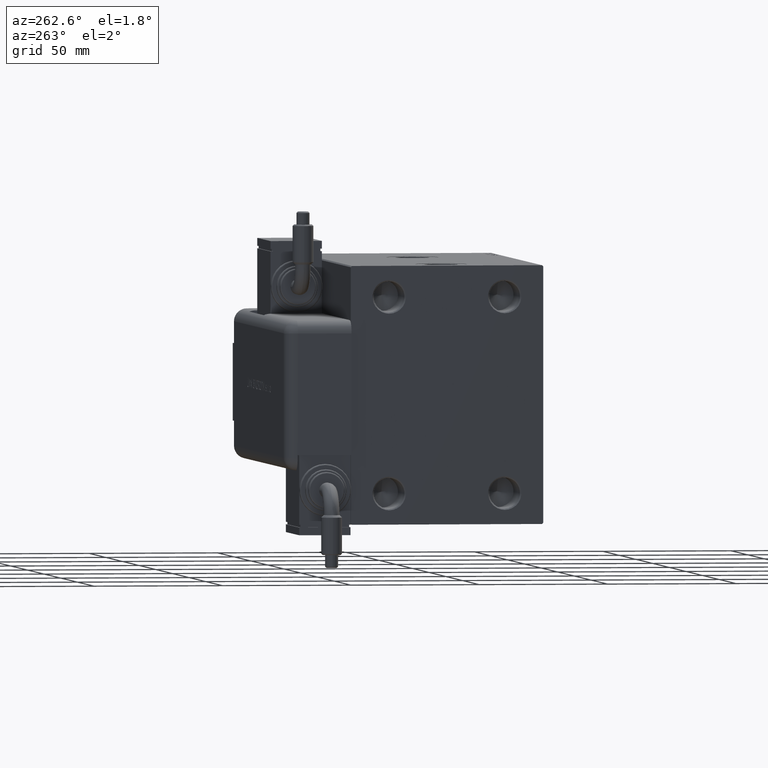
[diagram: clean part render]
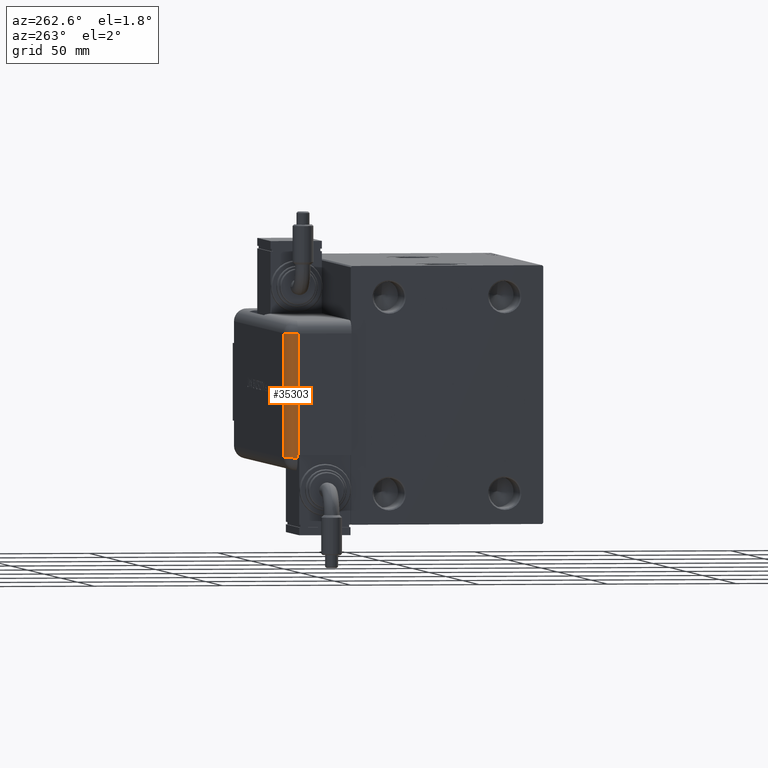
[diagram: same view with one face highlighted and labeled with its STEP entity id]
A machine part, auxiliary view. The second image highlights one B-rep face of the part: STEP entity #35303.
In plain terms, the highlighted cylindrical surface (edge-blend (fillet) strip) has radius 5 mm, axis along (0, 0, -1).
Its self-contained STEP definition (entity closure, byte-faithful):
#760 = ORIENTED_EDGE ( 'NONE', *, *, #49754, .F. ) ;
#1373 = VERTEX_POINT ( 'NONE', #47090 ) ;
#3395 = ORIENTED_EDGE ( 'NONE', *, *, #59337, .F. ) ;
#3765 = ORIENTED_EDGE ( 'NONE', *, *, #51283, .F. ) ;
#4147 = DIRECTION ( 'NONE',  ( 1.000000000000000000, 0.000000000000000000, 0.000000000000000000 ) ) ;
#4599 = DIRECTION ( 'NONE',  ( 1.000000000000000000, -0.000000000000000000, 0.000000000000000000 ) ) ;
#4879 = AXIS2_PLACEMENT_3D ( 'NONE', #33644, #4147, #47951 ) ;
#7923 = EDGE_LOOP ( 'NONE', ( #7996, #40153, #3395, #41831, #760, #3765 ) ) ;
#7996 = ORIENTED_EDGE ( 'NONE', *, *, #11598, .F. ) ;
#8277 = AXIS2_PLACEMENT_3D ( 'NONE', #48094, #4599, #23951 ) ;
#8920 = FACE_OUTER_BOUND ( 'NONE', #7923, .T. ) ;
#9610 = CARTESIAN_POINT ( 'NONE',  ( 23.00000000000000000, 20.79999999999998295, 1.734723475976807094E-15 ) ) ;
#11253 = CARTESIAN_POINT ( 'NONE',  ( 23.99999999999999289, 25.79999999999998295, 5.000000000000004441 ) ) ;
#11598 = EDGE_CURVE ( 'NONE', #57452, #1373, #55269, .T. ) ;
#19702 = AXIS2_PLACEMENT_3D ( 'NONE', #21998, #59811, #27080 ) ;
#21998 = CARTESIAN_POINT ( 'NONE',  ( 23.00000000000000000, 20.79999999999998295, 5.000000000000004441 ) ) ;
#23503 = DIRECTION ( 'NONE',  ( 0.000000000000000000, 0.000000000000000000, -1.000000000000000000 ) ) ;
#23951 = DIRECTION ( 'NONE',  ( 0.000000000000000000, 0.000000000000000000, -1.000000000000000000 ) ) ;
#26525 = CIRCLE ( 'NONE', #8277, 5.000000000000000000 ) ;
#27080 = DIRECTION ( 'NONE',  ( 0.000000000000000000, 1.526556658859590243E-14, -1.000000000000000000 ) ) ;
#29214 = CARTESIAN_POINT ( 'NONE',  ( -23.99999999999999645, 20.79999999999998295, 5.000000000000002665 ) ) ;
#29536 = VERTEX_POINT ( 'NONE', #31392 ) ;
#30514 = CARTESIAN_POINT ( 'NONE',  ( 23.00000000000000000, 21.00000000000000000, 0.004001601281286050471 ) ) ;
#31392 = CARTESIAN_POINT ( 'NONE',  ( -23.99999999999999645, 20.79999999999998295, 0.000000000000000000 ) ) ;
#31743 = DIRECTION ( 'NONE',  ( 1.000000000000000000, 0.000000000000000000, 0.000000000000000000 ) ) ;
#32448 = DIRECTION ( 'NONE',  ( 1.000000000000000000, -0.000000000000000000, -0.000000000000000000 ) ) ;
#33644 = CARTESIAN_POINT ( 'NONE',  ( -28.99999999999999645, 20.79999999999998295, 5.000000000000004441 ) ) ;
#33731 = VECTOR ( 'NONE', #31743, 1000.000000000000000 ) ;
#33929 = CIRCLE ( 'NONE', #19702, 5.000000000000000000 ) ;
#35303 = ADVANCED_FACE ( 'NONE', ( #8920 ), #39026, .T. ) ;
#36488 = CIRCLE ( 'NONE', #41561, 5.000000000000000000 ) ;
#36515 = CARTESIAN_POINT ( 'NONE',  ( -28.99999999999999645, 21.00000000000000000, 0.004001601281286050471 ) ) ;
#38302 = VERTEX_POINT ( 'NONE', #11253 ) ;
#38957 = VECTOR ( 'NONE', #32448, 1000.000000000000000 ) ;
#39026 = CYLINDRICAL_SURFACE ( 'NONE', #4879, 5.000000000000000000 ) ;
#39396 = LINE ( 'NONE', #53714, #46734 ) ;
#40153 = ORIENTED_EDGE ( 'NONE', *, *, #59163, .T. ) ;
#41561 = AXIS2_PLACEMENT_3D ( 'NONE', #29214, #43810, #23503 ) ;
#41831 = ORIENTED_EDGE ( 'NONE', *, *, #42967, .T. ) ;
#42120 = CARTESIAN_POINT ( 'NONE',  ( -23.99999999999999645, 25.79999999999998295, 5.000000000000004441 ) ) ;
#42967 = EDGE_CURVE ( 'NONE', #29536, #57915, #36488, .T. ) ;
#43810 = DIRECTION ( 'NONE',  ( 1.000000000000000000, -0.000000000000000000, 0.000000000000000000 ) ) ;
#45739 = VERTEX_POINT ( 'NONE', #9610 ) ;
#46734 = VECTOR ( 'NONE', #48945, 1000.000000000000000 ) ;
#47090 = CARTESIAN_POINT ( 'NONE',  ( 23.99999999999999289, 21.00000000000000000, 0.004001601281283882067 ) ) ;
#47951 = DIRECTION ( 'NONE',  ( 0.000000000000000000, 0.000000000000000000, -1.000000000000000000 ) ) ;
#48094 = CARTESIAN_POINT ( 'NONE',  ( 23.99999999999999289, 20.79999999999998295, 5.000000000000000000 ) ) ;
#48945 = DIRECTION ( 'NONE',  ( -1.000000000000000000, 0.000000000000000000, 0.000000000000000000 ) ) ;
#49754 = EDGE_CURVE ( 'NONE', #38302, #57915, #39396, .T. ) ;
#51283 = EDGE_CURVE ( 'NONE', #1373, #38302, #26525, .T. ) ;
#53714 = CARTESIAN_POINT ( 'NONE',  ( -23.99999999999999645, 25.79999999999998295, 5.000000000000004441 ) ) ;
#55269 = LINE ( 'NONE', #36515, #33731 ) ;
#56913 = LINE ( 'NONE', #57856, #38957 ) ;
#57452 = VERTEX_POINT ( 'NONE', #30514 ) ;
#57856 = CARTESIAN_POINT ( 'NONE',  ( 23.99999999999999289, 20.79999999999998295, 0.000000000000000000 ) ) ;
#57915 = VERTEX_POINT ( 'NONE', #42120 ) ;
#59163 = EDGE_CURVE ( 'NONE', #57452, #45739, #33929, .T. ) ;
#59337 = EDGE_CURVE ( 'NONE', #29536, #45739, #56913, .T. ) ;
#59811 = DIRECTION ( 'NONE',  ( -1.000000000000000000, -0.000000000000000000, 0.000000000000000000 ) ) ;